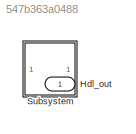
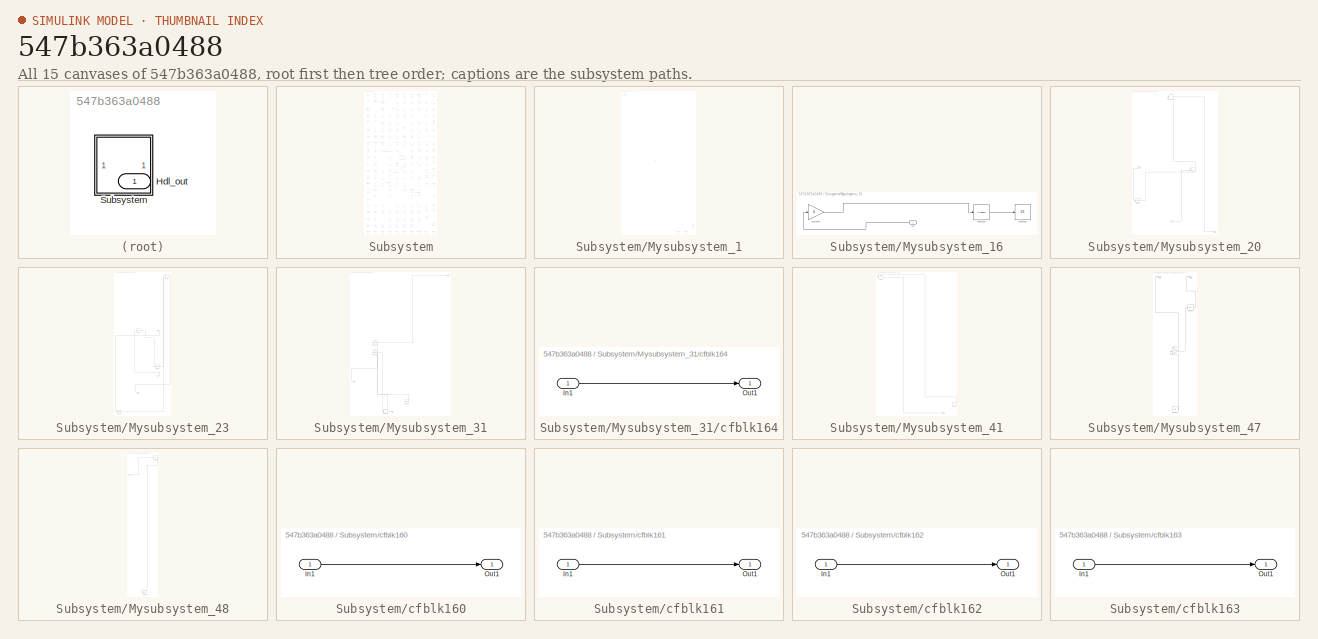
[diagram: thumbnail index - all 15 canvases of the model, root first then tree order]
MODEL slx_547b363a0488
KIND model
CONFIG AbsTol = auto
CONFIG EnableMultiTasking = off
CONFIG FixedStep = auto
CONFIG MaxStep = auto
CONFIG MinStep = auto
CONFIG RelTol = 1e-3
CONFIG SampleTimeConstraint = Unconstrained
CONFIG SolverName = VariableStepAuto
CONFIG StartTime = 0.0
CONFIG StopTime = 10.0
BLOCK [Outport] Hdl_out
  OutDataTypeStr = uint8
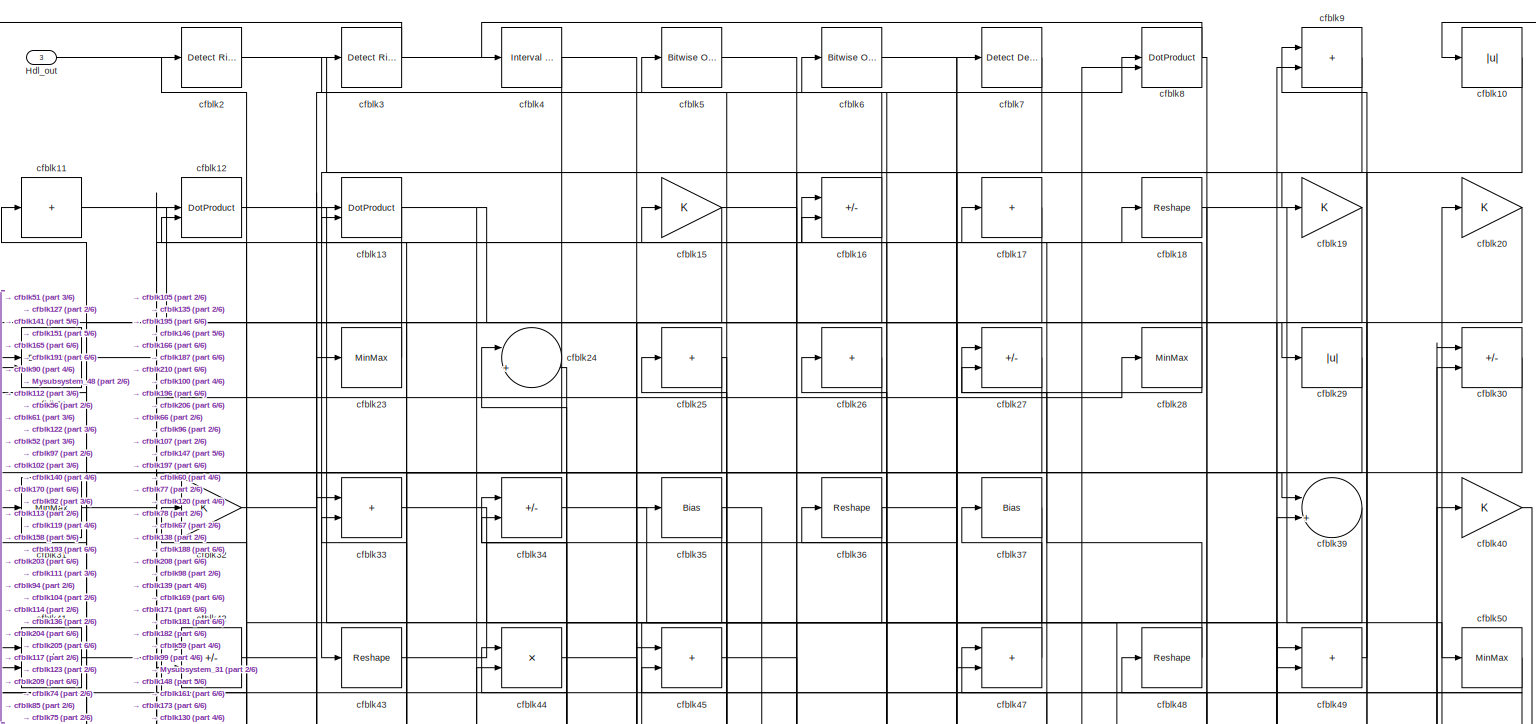
[diagram: Subsystem - part 1/6, full width, top band]
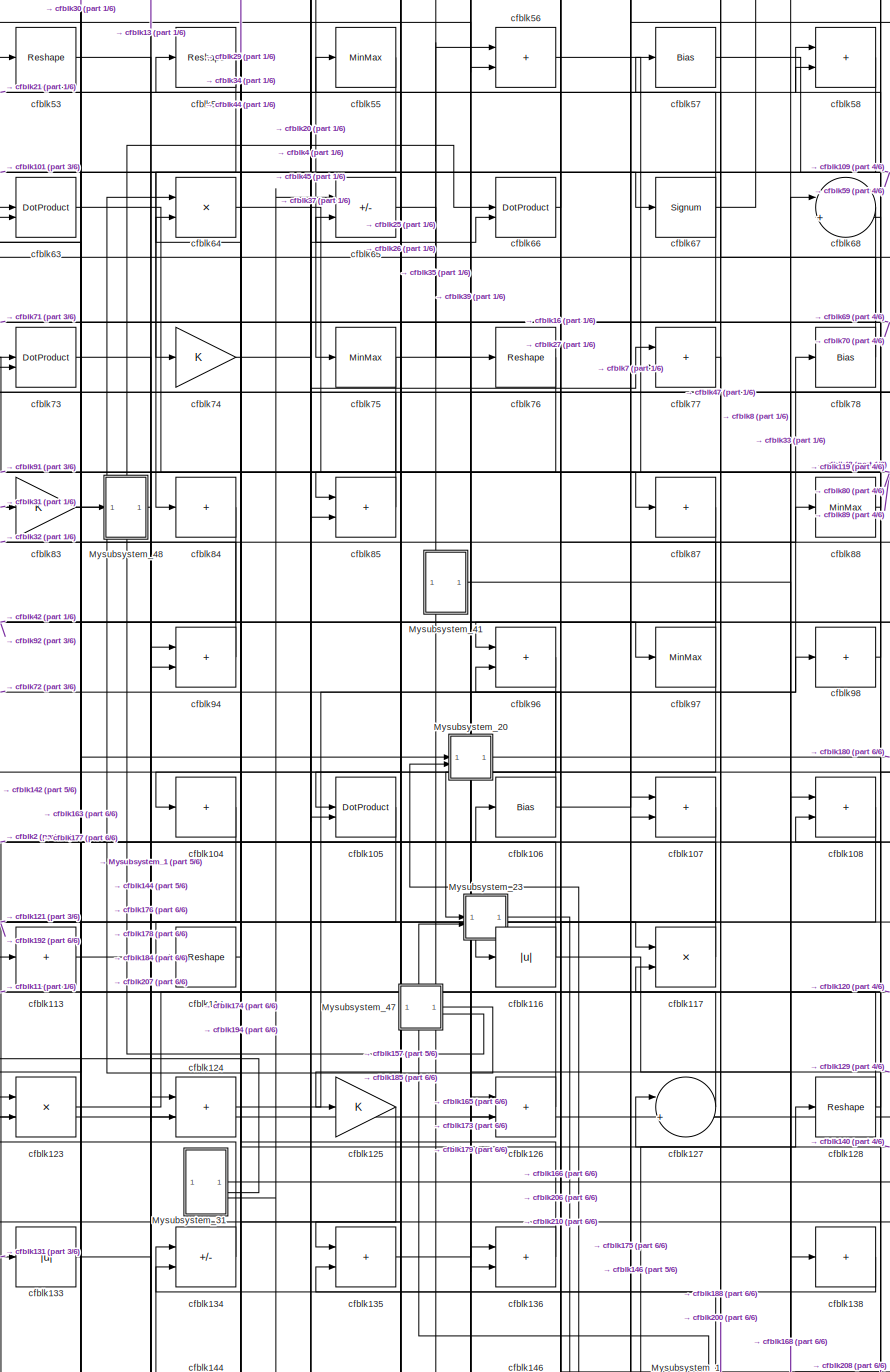
[diagram: Subsystem - part 2/6, central region]
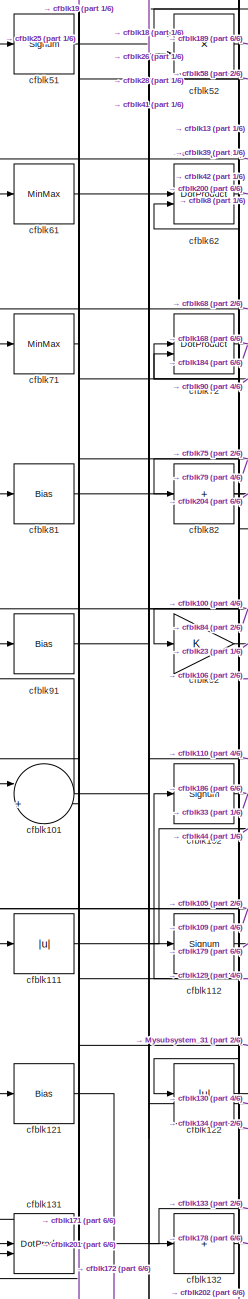
[diagram: Subsystem - part 3/6, middle left region]
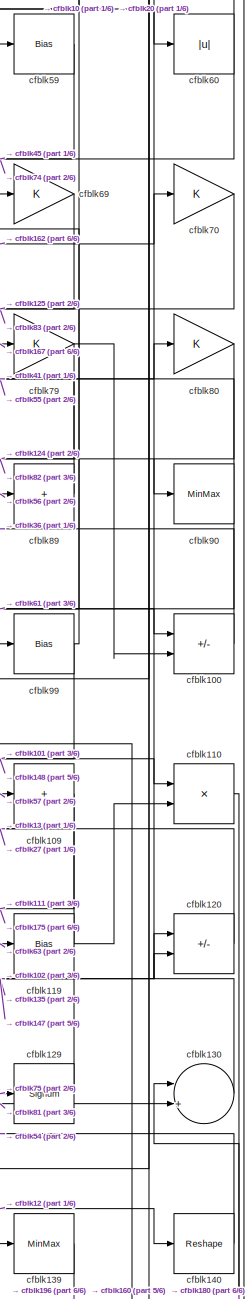
[diagram: Subsystem - part 4/6, middle right region]
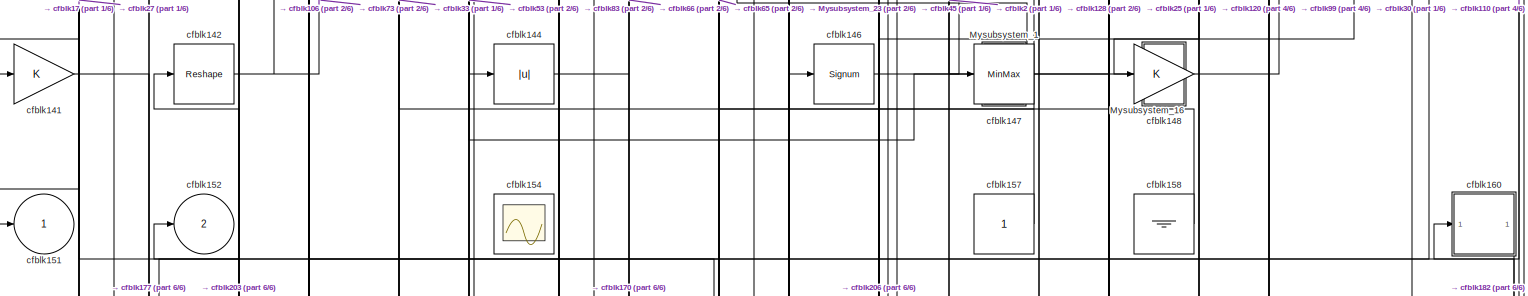
[diagram: Subsystem - part 5/6, full width, bottom band]
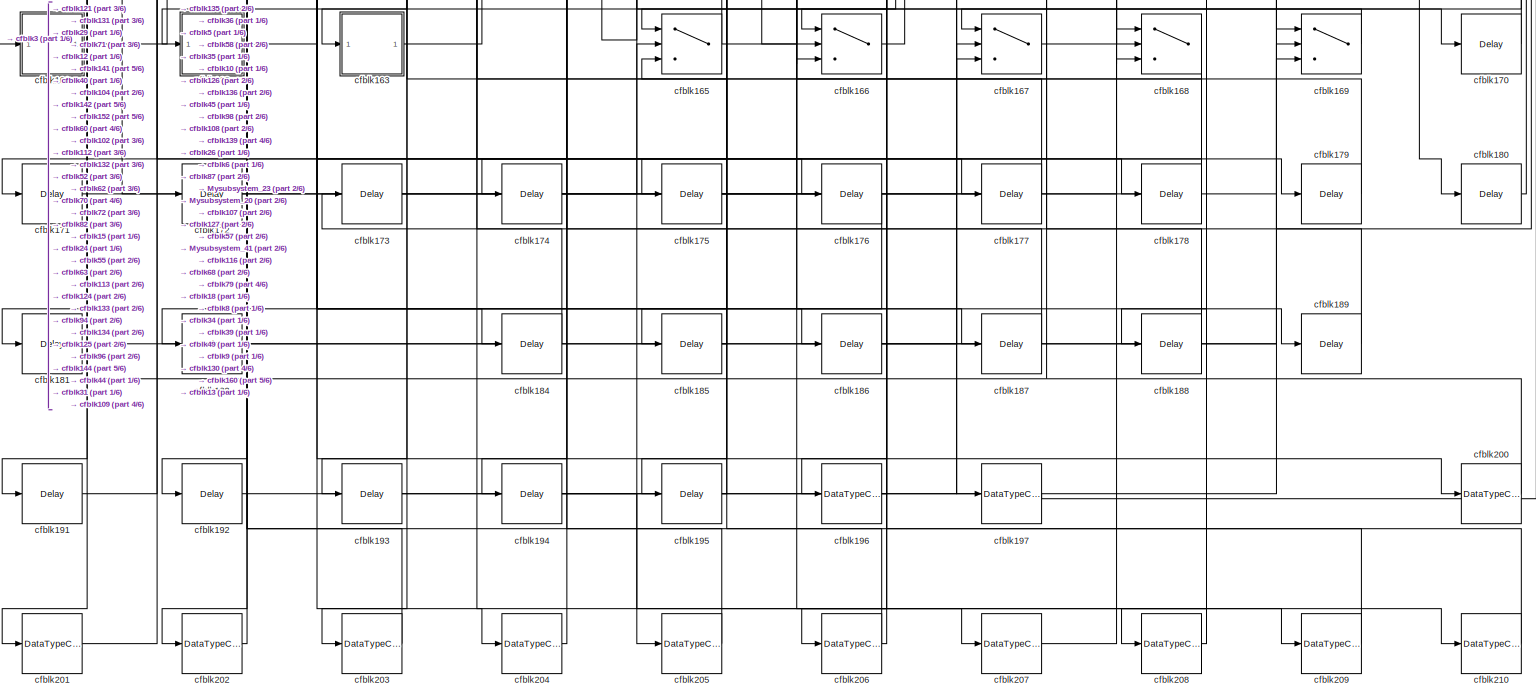
[diagram: Subsystem - part 6/6, full width, bottom band]
BLOCK [SubSystem] Subsystem
BLOCK [Outport] Subsystem/Hdl_out
  OutDataTypeStr = uint8
  Port = 3
BLOCK [SubSystem] Subsystem/Mysubsystem_1
  RTWFcnName = Mysubsystem_1
  RTWFcnNameOpts = User specified
  RTWFileNameOpts = Use function name
  RTWSystemCode = Reusable function
  TreatAsAtomicUnit = on
BLOCK [Inport] Subsystem/Mysubsystem_1/In1
BLOCK [Outport] Subsystem/Mysubsystem_1/Out1
BLOCK [Reference] Subsystem/Mysubsystem_1/cfblk1  REF=hdlsllib/Logic and Bit
Operations/Detect Rise
Positive
  SourceBlock = hdlsllib/Logic and Bit\nOperations/Detect Rise\nPositive
  SourceType = Detect Rise Positive
BLOCK [Delay] Subsystem/Mysubsystem_1/cfblk190
  InputPortMap = u0
  SampleTime = 1
BLOCK [DataTypeConversion] Subsystem/Mysubsystem_1/cfblk198
  OutDataTypeStr = uint8
  RndMeth = Floor
  SaturateOnIntegerOverflow = off
BLOCK [DataTypeConversion] Subsystem/Mysubsystem_1/cfblk199
  OutDataTypeStr = uint8
  RndMeth = Floor
  SaturateOnIntegerOverflow = off
BLOCK [SubSystem] Subsystem/Mysubsystem_16
  RTWFcnName = Mysubsystem_16
  RTWFcnNameOpts = User specified
  RTWFileNameOpts = Use function name
  RTWSystemCode = Reusable function
  TreatAsAtomicUnit = on
BLOCK [Inport] Subsystem/Mysubsystem_16/In1
BLOCK [Gain] Subsystem/Mysubsystem_16/cfblk145
BLOCK [Signum] Subsystem/Mysubsystem_16/cfblk149
BLOCK [Display] Subsystem/Mysubsystem_16/cfblk150
  Decimation = 1
BLOCK [SubSystem] Subsystem/Mysubsystem_20
  RTWFcnName = Mysubsystem_20
  RTWFcnNameOpts = User specified
  RTWFileNameOpts = Use function name
  RTWSystemCode = Reusable function
  TreatAsAtomicUnit = on
BLOCK [Inport] Subsystem/Mysubsystem_20/In1
BLOCK [Inport] Subsystem/Mysubsystem_20/In2
  Port = 2
BLOCK [Outport] Subsystem/Mysubsystem_20/Out1
BLOCK [Product] Subsystem/Mysubsystem_20/cfblk118
  Inputs = */
  RndMeth = Zero
  SaturateOnIntegerOverflow = on
BLOCK [Bias] Subsystem/Mysubsystem_20/cfblk143
  Bias = 0.0
  SaturateOnIntegerOverflow = off
BLOCK [Sum] Subsystem/Mysubsystem_20/cfblk46
  IconShape = rectangular
  Inputs = +
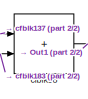
[diagram: Subsystem/Mysubsystem_23 - part 1/2, top right region]
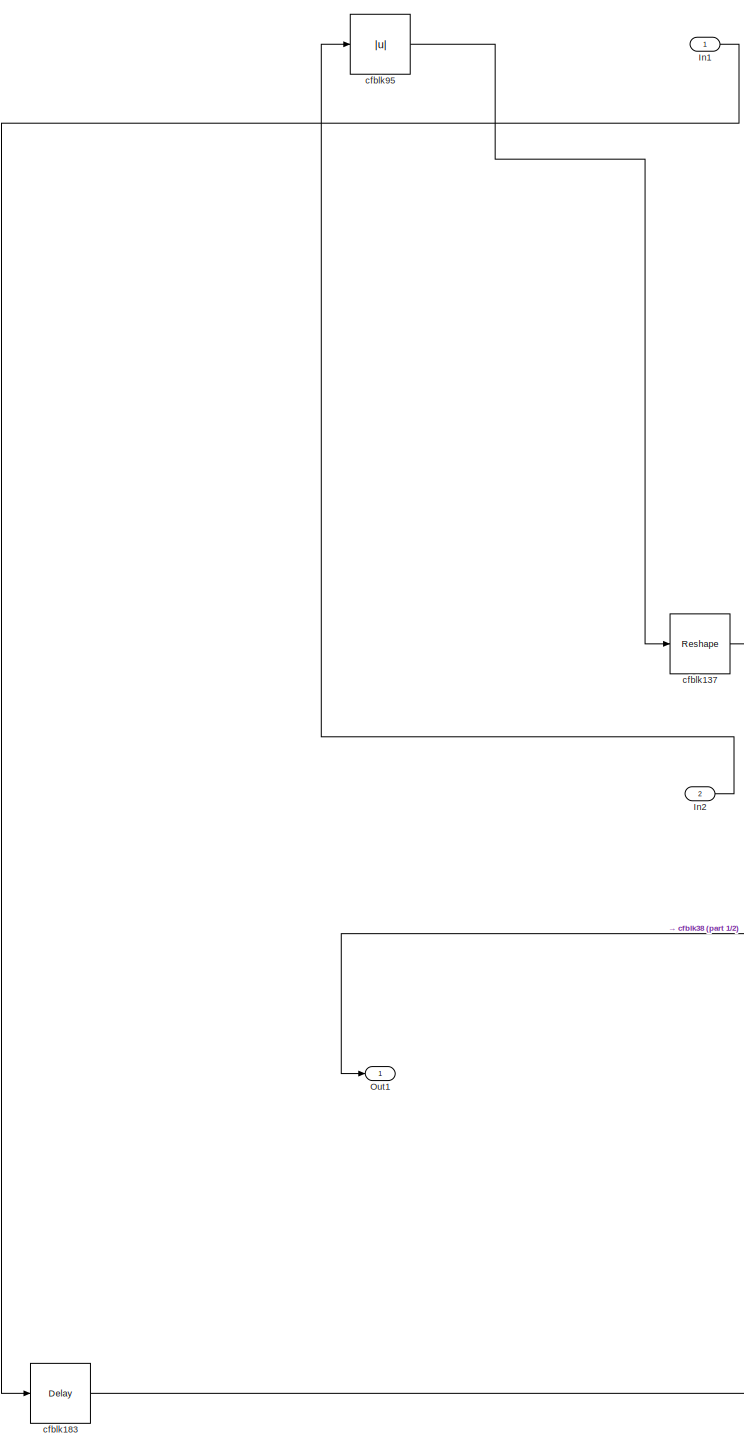
[diagram: Subsystem/Mysubsystem_23 - part 2/2, full width, bottom band]
BLOCK [SubSystem] Subsystem/Mysubsystem_23
  RTWFcnName = Mysubsystem_23
  RTWFcnNameOpts = User specified
  RTWFileNameOpts = Use function name
  RTWSystemCode = Reusable function
  TreatAsAtomicUnit = on
BLOCK [Inport] Subsystem/Mysubsystem_23/In1
BLOCK [Inport] Subsystem/Mysubsystem_23/In2
  Port = 2
BLOCK [Outport] Subsystem/Mysubsystem_23/Out1
BLOCK [Reshape] Subsystem/Mysubsystem_23/cfblk137
BLOCK [Delay] Subsystem/Mysubsystem_23/cfblk183
  InputPortMap = u0
  SampleTime = 1
BLOCK [Sum] Subsystem/Mysubsystem_23/cfblk38
  IconShape = rectangular
BLOCK [Abs] Subsystem/Mysubsystem_23/cfblk95
  SaturateOnIntegerOverflow = off
BLOCK [SubSystem] Subsystem/Mysubsystem_31
  RTWFcnName = Mysubsystem_31
  RTWFcnNameOpts = User specified
  RTWFileNameOpts = Use function name
  RTWSystemCode = Reusable function
  TreatAsAtomicUnit = on
BLOCK [Outport] Subsystem/Mysubsystem_31/Out1
BLOCK [Outport] Subsystem/Mysubsystem_31/Out2
  Port = 2
BLOCK [Outport] Subsystem/Mysubsystem_31/Out3
  Port = 3
BLOCK [Signum] Subsystem/Mysubsystem_31/cfblk103
BLOCK [Reference] Subsystem/Mysubsystem_31/cfblk156  REF=hdlsllib/Sources/Counter
Limited
  SourceBlock = hdlsllib/Sources/Counter\nLimited
  SourceType = Counter Limited
BLOCK [SubSystem] Subsystem/Mysubsystem_31/cfblk164
  LibrarySourceBlock = hdlsllib/Ports &\nSubsystems/Subsystem
BLOCK [Inport] Subsystem/Mysubsystem_31/cfblk164/In1
BLOCK [Outport] Subsystem/Mysubsystem_31/cfblk164/Out1
BLOCK [Reshape] Subsystem/Mysubsystem_31/cfblk93
BLOCK [SubSystem] Subsystem/Mysubsystem_41
  RTWFcnName = Mysubsystem_41
  RTWFcnNameOpts = User specified
  RTWFileNameOpts = Use function name
  RTWSystemCode = Reusable function
  TreatAsAtomicUnit = on
BLOCK [Outport] Subsystem/Mysubsystem_41/Out1
BLOCK [Constant] Subsystem/Mysubsystem_41/cfblk159
  SampleTime = -1
BLOCK [Abs] Subsystem/Mysubsystem_41/cfblk22
  SaturateOnIntegerOverflow = off
BLOCK [SubSystem] Subsystem/Mysubsystem_47
  RTWFcnName = Mysubsystem_47
  RTWFcnNameOpts = User specified
  RTWFileNameOpts = Use function name
  RTWSystemCode = Reusable function
  TreatAsAtomicUnit = on
BLOCK [Outport] Subsystem/Mysubsystem_47/Out1
BLOCK [Outport] Subsystem/Mysubsystem_47/Out2
  Port = 2
BLOCK [Gain] Subsystem/Mysubsystem_47/cfblk115
BLOCK [Ground] Subsystem/Mysubsystem_47/cfblk155
BLOCK [Abs] Subsystem/Mysubsystem_47/cfblk86
  SaturateOnIntegerOverflow = off
BLOCK [SubSystem] Subsystem/Mysubsystem_48
  RTWFcnName = Mysubsystem_48
  RTWFcnNameOpts = User specified
  RTWFileNameOpts = Use function name
  RTWSystemCode = Reusable function
  TreatAsAtomicUnit = on
BLOCK [Inport] Subsystem/Mysubsystem_48/In1
BLOCK [Abs] Subsystem/Mysubsystem_48/cfblk14
  SaturateOnIntegerOverflow = off
BLOCK [Display] Subsystem/Mysubsystem_48/cfblk153
  Decimation = 1
BLOCK [Abs] Subsystem/cfblk10
  OutDataTypeStr = uint8
  SaturateOnIntegerOverflow = off
BLOCK [Sum] Subsystem/cfblk100
  IconShape = rectangular
  Inputs = +-
  OutDataTypeStr = uint8
BLOCK [Sum] Subsystem/cfblk101
  Inputs = |++
  OutDataTypeStr = uint8
BLOCK [Signum] Subsystem/cfblk102
BLOCK [Sum] Subsystem/cfblk104
  IconShape = rectangular
  Inputs = +
  OutDataTypeStr = uint8
BLOCK [DotProduct] Subsystem/cfblk105
  OutDataTypeStr = uint8
BLOCK [Bias] Subsystem/cfblk106
  Bias = 0.0
  SaturateOnIntegerOverflow = off
BLOCK [Sum] Subsystem/cfblk107
  IconShape = rectangular
  OutDataTypeStr = uint8
BLOCK [Sum] Subsystem/cfblk108
  IconShape = rectangular
  OutDataTypeStr = uint8
BLOCK [Sum] Subsystem/cfblk109
  IconShape = rectangular
  Inputs = +
  OutDataTypeStr = uint8
BLOCK [Sum] Subsystem/cfblk11
  IconShape = rectangular
  Inputs = +
  OutDataTypeStr = uint8
BLOCK [Product] Subsystem/cfblk110
  Inputs = */
  OutDataTypeStr = uint8
  RndMeth = Zero
  SaturateOnIntegerOverflow = on
BLOCK [Abs] Subsystem/cfblk111
  OutDataTypeStr = uint8
  SaturateOnIntegerOverflow = off
BLOCK [Signum] Subsystem/cfblk112
BLOCK [Sum] Subsystem/cfblk113
  IconShape = rectangular
  Inputs = +
  OutDataTypeStr = uint8
BLOCK [Reshape] Subsystem/cfblk114
BLOCK [Abs] Subsystem/cfblk116
  OutDataTypeStr = uint8
  SaturateOnIntegerOverflow = off
BLOCK [Product] Subsystem/cfblk117
  Inputs = */
  OutDataTypeStr = uint8
  RndMeth = Zero
  SaturateOnIntegerOverflow = on
BLOCK [Bias] Subsystem/cfblk119
  Bias = 0.0
  SaturateOnIntegerOverflow = off
BLOCK [DotProduct] Subsystem/cfblk12
  OutDataTypeStr = uint8
BLOCK [Sum] Subsystem/cfblk120
  IconShape = rectangular
  Inputs = +-
  OutDataTypeStr = uint8
BLOCK [Bias] Subsystem/cfblk121
  Bias = 0.0
  SaturateOnIntegerOverflow = off
BLOCK [Abs] Subsystem/cfblk122
  OutDataTypeStr = uint8
  SaturateOnIntegerOverflow = off
BLOCK [Product] Subsystem/cfblk123
  Inputs = */
  OutDataTypeStr = uint8
  RndMeth = Zero
  SaturateOnIntegerOverflow = on
BLOCK [Sum] Subsystem/cfblk124
  IconShape = rectangular
  OutDataTypeStr = uint8
BLOCK [Gain] Subsystem/cfblk125
  OutDataTypeStr = uint8
BLOCK [Sum] Subsystem/cfblk126
  IconShape = rectangular
  OutDataTypeStr = uint8
BLOCK [Sum] Subsystem/cfblk127
  Inputs = |++
  OutDataTypeStr = uint8
BLOCK [Reshape] Subsystem/cfblk128
BLOCK [Signum] Subsystem/cfblk129
BLOCK [DotProduct] Subsystem/cfblk13
  OutDataTypeStr = uint8
BLOCK [Sum] Subsystem/cfblk130
  Inputs = |++
  OutDataTypeStr = uint8
BLOCK [DotProduct] Subsystem/cfblk131
  OutDataTypeStr = uint8
BLOCK [Sum] Subsystem/cfblk132
  IconShape = rectangular
  Inputs = +
  OutDataTypeStr = uint8
BLOCK [Abs] Subsystem/cfblk133
  OutDataTypeStr = uint8
  SaturateOnIntegerOverflow = off
BLOCK [Sum] Subsystem/cfblk134
  IconShape = rectangular
  Inputs = +-
  OutDataTypeStr = uint8
BLOCK [Sum] Subsystem/cfblk135
  IconShape = rectangular
  OutDataTypeStr = uint8
BLOCK [Sum] Subsystem/cfblk136
  IconShape = rectangular
  OutDataTypeStr = uint8
BLOCK [Sum] Subsystem/cfblk138
  IconShape = rectangular
  Inputs = +
  OutDataTypeStr = uint8
BLOCK [MinMax] Subsystem/cfblk139
  OutDataTypeStr = uint8
BLOCK [Reshape] Subsystem/cfblk140
BLOCK [Gain] Subsystem/cfblk141
  OutDataTypeStr = uint8
BLOCK [Reshape] Subsystem/cfblk142
BLOCK [Abs] Subsystem/cfblk144
  OutDataTypeStr = uint8
  SaturateOnIntegerOverflow = off
BLOCK [Signum] Subsystem/cfblk146
BLOCK [MinMax] Subsystem/cfblk147
  OutDataTypeStr = uint8
BLOCK [Gain] Subsystem/cfblk148
  OutDataTypeStr = uint8
BLOCK [Gain] Subsystem/cfblk15
  OutDataTypeStr = uint8
BLOCK [Outport] Subsystem/cfblk151
  OutDataTypeStr = uint8
  VectorParamsAs1DForOutWhenUnconnected = off
BLOCK [Outport] Subsystem/cfblk152
  OutDataTypeStr = uint8
  Port = 2
  VectorParamsAs1DForOutWhenUnconnected = off
BLOCK [Scope] Subsystem/cfblk154
  Floating = on
  NumInputPorts = 1
  ScopeSpecificationString = Simulink.scopes.TimeScopeBlockCfg('CurrentConfiguration', extmgr.ConfigurationSet(extmgr.Configuration('Core','General UI',true,'FigureColor',[0.156862745098039 0.156862745098039 0.156862745098039]),extmgr.Configuration('Core','Source UI',true),extmgr.Configuration('Sources','WiredSimulink',true,'DataLoggingSaveFormat','StructureWithTime','DataLoggingLimitDataPoints',true,'DataLoggingDecimation','...<+2674ch>
BLOCK [Constant] Subsystem/cfblk157
  OutDataTypeStr = uint8
  SampleTime = -1
BLOCK [Ground] Subsystem/cfblk158
BLOCK [Sum] Subsystem/cfblk16
  IconShape = rectangular
  Inputs = +-
  OutDataTypeStr = uint8
BLOCK [SubSystem] Subsystem/cfblk160
  LibrarySourceBlock = hdlsllib/Ports &\nSubsystems/Subsystem
BLOCK [Inport] Subsystem/cfblk160/In1
BLOCK [Outport] Subsystem/cfblk160/Out1
BLOCK [SubSystem] Subsystem/cfblk161
  LibrarySourceBlock = hdlsllib/Ports &\nSubsystems/Subsystem
BLOCK [Inport] Subsystem/cfblk161/In1
BLOCK [Outport] Subsystem/cfblk161/Out1
BLOCK [SubSystem] Subsystem/cfblk162
  LibrarySourceBlock = hdlsllib/Ports &\nSubsystems/Subsystem
BLOCK [Inport] Subsystem/cfblk162/In1
BLOCK [Outport] Subsystem/cfblk162/Out1
BLOCK [SubSystem] Subsystem/cfblk163
  LibrarySourceBlock = hdlsllib/Ports &\nSubsystems/Subsystem
BLOCK [Inport] Subsystem/cfblk163/In1
BLOCK [Outport] Subsystem/cfblk163/Out1
BLOCK [Switch] Subsystem/cfblk165
  InputSameDT = off
  OutDataTypeStr = uint8
  SaturateOnIntegerOverflow = off
BLOCK [Switch] Subsystem/cfblk166
  InputSameDT = off
  OutDataTypeStr = uint8
  SaturateOnIntegerOverflow = off
BLOCK [Switch] Subsystem/cfblk167
  InputSameDT = off
  OutDataTypeStr = uint8
  SaturateOnIntegerOverflow = off
BLOCK [Switch] Subsystem/cfblk168
  InputSameDT = off
  OutDataTypeStr = uint8
  SaturateOnIntegerOverflow = off
BLOCK [Switch] Subsystem/cfblk169
  InputSameDT = off
  OutDataTypeStr = uint8
  SaturateOnIntegerOverflow = off
BLOCK [Sum] Subsystem/cfblk17
  IconShape = rectangular
  Inputs = +
  OutDataTypeStr = uint8
BLOCK [Delay] Subsystem/cfblk170
  InputPortMap = u0
  SampleTime = 1
BLOCK [Delay] Subsystem/cfblk171
  InputPortMap = u0
  SampleTime = 1
BLOCK [Delay] Subsystem/cfblk172
  InputPortMap = u0
  SampleTime = 1
BLOCK [Delay] Subsystem/cfblk173
  InputPortMap = u0
  SampleTime = 1
BLOCK [Delay] Subsystem/cfblk174
  InputPortMap = u0
  SampleTime = 1
BLOCK [Delay] Subsystem/cfblk175
  InputPortMap = u0
  SampleTime = 1
BLOCK [Delay] Subsystem/cfblk176
  InputPortMap = u0
  SampleTime = 1
BLOCK [Delay] Subsystem/cfblk177
  InputPortMap = u0
  SampleTime = 1
BLOCK [Delay] Subsystem/cfblk178
  InputPortMap = u0
  SampleTime = 1
BLOCK [Delay] Subsystem/cfblk179
  InputPortMap = u0
  SampleTime = 1
BLOCK [Reshape] Subsystem/cfblk18
BLOCK [Delay] Subsystem/cfblk180
  InputPortMap = u0
  SampleTime = 1
BLOCK [Delay] Subsystem/cfblk181
  InputPortMap = u0
  SampleTime = 1
BLOCK [Delay] Subsystem/cfblk182
  InputPortMap = u0
  SampleTime = 1
BLOCK [Delay] Subsystem/cfblk184
  InputPortMap = u0
  SampleTime = 1
BLOCK [Delay] Subsystem/cfblk185
  InputPortMap = u0
  SampleTime = 1
BLOCK [Delay] Subsystem/cfblk186
  InputPortMap = u0
  SampleTime = 1
BLOCK [Delay] Subsystem/cfblk187
  InputPortMap = u0
  SampleTime = 1
BLOCK [Delay] Subsystem/cfblk188
  InputPortMap = u0
  SampleTime = 1
BLOCK [Delay] Subsystem/cfblk189
  InputPortMap = u0
  SampleTime = 1
BLOCK [Gain] Subsystem/cfblk19
  OutDataTypeStr = uint8
BLOCK [Delay] Subsystem/cfblk191
  InputPortMap = u0
  SampleTime = 1
BLOCK [Delay] Subsystem/cfblk192
  InputPortMap = u0
  SampleTime = 1
BLOCK [Delay] Subsystem/cfblk193
  InputPortMap = u0
  SampleTime = 1
BLOCK [Delay] Subsystem/cfblk194
  InputPortMap = u0
  SampleTime = 1
BLOCK [Delay] Subsystem/cfblk195
  InputPortMap = u0
  SampleTime = 1
BLOCK [DataTypeConversion] Subsystem/cfblk196
  OutDataTypeStr = uint8
  RndMeth = Floor
  SaturateOnIntegerOverflow = off
BLOCK [DataTypeConversion] Subsystem/cfblk197
  OutDataTypeStr = uint8
  RndMeth = Floor
  SaturateOnIntegerOverflow = off
BLOCK [Reference] Subsystem/cfblk2  REF=hdlsllib/Logic and Bit
Operations/Detect Rise
Nonnegative
  SourceBlock = hdlsllib/Logic and Bit\nOperations/Detect Rise\nNonnegative
  SourceType = Detect Rise Nonnegative
BLOCK [Gain] Subsystem/cfblk20
  OutDataTypeStr = uint8
BLOCK [DataTypeConversion] Subsystem/cfblk200
  OutDataTypeStr = uint8
  RndMeth = Floor
  SaturateOnIntegerOverflow = off
BLOCK [DataTypeConversion] Subsystem/cfblk201
  OutDataTypeStr = uint8
  RndMeth = Floor
  SaturateOnIntegerOverflow = off
BLOCK [DataTypeConversion] Subsystem/cfblk202
  OutDataTypeStr = uint8
  RndMeth = Floor
  SaturateOnIntegerOverflow = off
BLOCK [DataTypeConversion] Subsystem/cfblk203
  OutDataTypeStr = uint8
  RndMeth = Floor
  SaturateOnIntegerOverflow = off
BLOCK [DataTypeConversion] Subsystem/cfblk204
  OutDataTypeStr = uint8
  RndMeth = Floor
  SaturateOnIntegerOverflow = off
BLOCK [DataTypeConversion] Subsystem/cfblk205
  OutDataTypeStr = uint8
  RndMeth = Floor
  SaturateOnIntegerOverflow = off
BLOCK [DataTypeConversion] Subsystem/cfblk206
  OutDataTypeStr = uint8
  RndMeth = Floor
  SaturateOnIntegerOverflow = off
BLOCK [DataTypeConversion] Subsystem/cfblk207
  OutDataTypeStr = uint8
  RndMeth = Floor
  SaturateOnIntegerOverflow = off
BLOCK [DataTypeConversion] Subsystem/cfblk208
  OutDataTypeStr = uint8
  RndMeth = Floor
  SaturateOnIntegerOverflow = off
BLOCK [DataTypeConversion] Subsystem/cfblk209
  OutDataTypeStr = uint8
  RndMeth = Floor
  SaturateOnIntegerOverflow = off
BLOCK [DotProduct] Subsystem/cfblk21
  OutDataTypeStr = uint8
BLOCK [DataTypeConversion] Subsystem/cfblk210
  OutDataTypeStr = uint8
  RndMeth = Floor
  SaturateOnIntegerOverflow = off
BLOCK [MinMax] Subsystem/cfblk23
  OutDataTypeStr = uint8
BLOCK [Sum] Subsystem/cfblk24
  Inputs = |++
  OutDataTypeStr = uint8
BLOCK [Sum] Subsystem/cfblk25
  IconShape = rectangular
  Inputs = +
  OutDataTypeStr = uint8
BLOCK [Sum] Subsystem/cfblk26
  IconShape = rectangular
  Inputs = +
  OutDataTypeStr = uint8
BLOCK [Sum] Subsystem/cfblk27
  IconShape = rectangular
  Inputs = +-
  OutDataTypeStr = uint8
BLOCK [MinMax] Subsystem/cfblk28
  OutDataTypeStr = uint8
BLOCK [Abs] Subsystem/cfblk29
  OutDataTypeStr = uint8
  SaturateOnIntegerOverflow = off
BLOCK [Reference] Subsystem/cfblk3  REF=hdlsllib/Logic and Bit
Operations/Detect Rise
Positive
  SourceBlock = hdlsllib/Logic and Bit\nOperations/Detect Rise\nPositive
  SourceType = Detect Rise Positive
BLOCK [Sum] Subsystem/cfblk30
  IconShape = rectangular
  Inputs = +-
  OutDataTypeStr = uint8
BLOCK [MinMax] Subsystem/cfblk31
  OutDataTypeStr = uint8
BLOCK [Gain] Subsystem/cfblk32
  OutDataTypeStr = uint8
BLOCK [Sum] Subsystem/cfblk33
  IconShape = rectangular
  OutDataTypeStr = uint8
BLOCK [Sum] Subsystem/cfblk34
  IconShape = rectangular
  Inputs = +-
  OutDataTypeStr = uint8
BLOCK [Bias] Subsystem/cfblk35
  Bias = 0.0
  SaturateOnIntegerOverflow = off
BLOCK [Reshape] Subsystem/cfblk36
BLOCK [Bias] Subsystem/cfblk37
  Bias = 0.0
  SaturateOnIntegerOverflow = off
BLOCK [Sum] Subsystem/cfblk39
  Inputs = |++
  OutDataTypeStr = uint8
BLOCK [Reference] Subsystem/cfblk4  REF=hdlsllib/Logic and Bit
Operations/Interval Test
  SourceBlock = hdlsllib/Logic and Bit\nOperations/Interval Test
  SourceType = Interval Test
BLOCK [Gain] Subsystem/cfblk40
  OutDataTypeStr = uint8
BLOCK [Sum] Subsystem/cfblk41
  IconShape = rectangular
  Inputs = +-
  OutDataTypeStr = uint8
BLOCK [Sum] Subsystem/cfblk42
  IconShape = rectangular
  Inputs = +-
  OutDataTypeStr = uint8
BLOCK [Reshape] Subsystem/cfblk43
BLOCK [Product] Subsystem/cfblk44
  Inputs = */
  OutDataTypeStr = uint8
  RndMeth = Zero
  SaturateOnIntegerOverflow = on
BLOCK [Sum] Subsystem/cfblk45
  IconShape = rectangular
  OutDataTypeStr = uint8
BLOCK [Sum] Subsystem/cfblk47
  IconShape = rectangular
  OutDataTypeStr = uint8
BLOCK [Reshape] Subsystem/cfblk48
BLOCK [Sum] Subsystem/cfblk49
  IconShape = rectangular
  OutDataTypeStr = uint8
BLOCK [Reference] Subsystem/cfblk5  REF=simulink/Logic and Bit
Operations/Bitwise
Operator
  LibrarySourceBlock = hdlsllib/Logic and Bit\nOperations/Bitwise\nOperator
  SourceBlock = simulink/Logic and Bit\nOperations/Bitwise\nOperator
  SourceType = Bitwise Operator
BLOCK [MinMax] Subsystem/cfblk50
  OutDataTypeStr = uint8
BLOCK [Signum] Subsystem/cfblk51
BLOCK [Product] Subsystem/cfblk52
  Inputs = */
  OutDataTypeStr = uint8
  RndMeth = Zero
  SaturateOnIntegerOverflow = on
BLOCK [Reshape] Subsystem/cfblk53
BLOCK [Reshape] Subsystem/cfblk54
BLOCK [MinMax] Subsystem/cfblk55
  OutDataTypeStr = uint8
BLOCK [Sum] Subsystem/cfblk56
  IconShape = rectangular
  OutDataTypeStr = uint8
BLOCK [Bias] Subsystem/cfblk57
  Bias = 0.0
  SaturateOnIntegerOverflow = off
BLOCK [Sum] Subsystem/cfblk58
  IconShape = rectangular
  OutDataTypeStr = uint8
BLOCK [Bias] Subsystem/cfblk59
  Bias = 0.0
  SaturateOnIntegerOverflow = off
BLOCK [Reference] Subsystem/cfblk6  REF=simulink/Logic and Bit
Operations/Bitwise
Operator
  LibrarySourceBlock = hdlsllib/Logic and Bit\nOperations/Bitwise\nOperator
  SourceBlock = simulink/Logic and Bit\nOperations/Bitwise\nOperator
  SourceType = Bitwise Operator
BLOCK [Abs] Subsystem/cfblk60
  OutDataTypeStr = uint8
  SaturateOnIntegerOverflow = off
BLOCK [MinMax] Subsystem/cfblk61
  OutDataTypeStr = uint8
BLOCK [DotProduct] Subsystem/cfblk62
  OutDataTypeStr = uint8
BLOCK [DotProduct] Subsystem/cfblk63
  OutDataTypeStr = uint8
BLOCK [Product] Subsystem/cfblk64
  Inputs = */
  OutDataTypeStr = uint8
  RndMeth = Zero
  SaturateOnIntegerOverflow = on
BLOCK [Sum] Subsystem/cfblk65
  IconShape = rectangular
  Inputs = +-
  OutDataTypeStr = uint8
BLOCK [DotProduct] Subsystem/cfblk66
  OutDataTypeStr = uint8
BLOCK [Signum] Subsystem/cfblk67
BLOCK [Sum] Subsystem/cfblk68
  Inputs = |++
  OutDataTypeStr = uint8
BLOCK [Gain] Subsystem/cfblk69
  OutDataTypeStr = uint8
BLOCK [Reference] Subsystem/cfblk7  REF=simulink/Logic and Bit
Operations/Detect
Decrease
  LibrarySourceBlock = hdlsllib/Logic and Bit\nOperations/Detect\nDecrease
  SourceBlock = simulink/Logic and Bit\nOperations/Detect\nDecrease
  SourceType = Detect Decrease
BLOCK [Gain] Subsystem/cfblk70
  OutDataTypeStr = uint8
BLOCK [MinMax] Subsystem/cfblk71
  OutDataTypeStr = uint8
BLOCK [DotProduct] Subsystem/cfblk72
  OutDataTypeStr = uint8
BLOCK [DotProduct] Subsystem/cfblk73
  OutDataTypeStr = uint8
BLOCK [Gain] Subsystem/cfblk74
  OutDataTypeStr = uint8
BLOCK [MinMax] Subsystem/cfblk75
  OutDataTypeStr = uint8
BLOCK [Reshape] Subsystem/cfblk76
BLOCK [Sum] Subsystem/cfblk77
  IconShape = rectangular
  OutDataTypeStr = uint8
BLOCK [Bias] Subsystem/cfblk78
  Bias = 0.0
  SaturateOnIntegerOverflow = off
BLOCK [Gain] Subsystem/cfblk79
  OutDataTypeStr = uint8
BLOCK [DotProduct] Subsystem/cfblk8
  OutDataTypeStr = uint8
BLOCK [Gain] Subsystem/cfblk80
  OutDataTypeStr = uint8
BLOCK [Bias] Subsystem/cfblk81
  Bias = 0.0
  SaturateOnIntegerOverflow = off
BLOCK [Sum] Subsystem/cfblk82
  IconShape = rectangular
  Inputs = +
  OutDataTypeStr = uint8
BLOCK [Gain] Subsystem/cfblk83
  OutDataTypeStr = uint8
BLOCK [Sum] Subsystem/cfblk84
  IconShape = rectangular
  Inputs = +
  OutDataTypeStr = uint8
BLOCK [Sum] Subsystem/cfblk85
  IconShape = rectangular
  OutDataTypeStr = uint8
BLOCK [Sum] Subsystem/cfblk87
  IconShape = rectangular
  Inputs = +
  OutDataTypeStr = uint8
BLOCK [MinMax] Subsystem/cfblk88
  OutDataTypeStr = uint8
BLOCK [Sum] Subsystem/cfblk89
  IconShape = rectangular
  Inputs = +
  OutDataTypeStr = uint8
BLOCK [Sum] Subsystem/cfblk9
  IconShape = rectangular
  OutDataTypeStr = uint8
BLOCK [MinMax] Subsystem/cfblk90
  OutDataTypeStr = uint8
BLOCK [Bias] Subsystem/cfblk91
  Bias = 0.0
  SaturateOnIntegerOverflow = off
BLOCK [Gain] Subsystem/cfblk92
  OutDataTypeStr = uint8
BLOCK [Sum] Subsystem/cfblk94
  IconShape = rectangular
  OutDataTypeStr = uint8
BLOCK [Sum] Subsystem/cfblk96
  IconShape = rectangular
  OutDataTypeStr = uint8
BLOCK [MinMax] Subsystem/cfblk97
  OutDataTypeStr = uint8
BLOCK [Sum] Subsystem/cfblk98
  IconShape = rectangular
  Inputs = +
  OutDataTypeStr = uint8
BLOCK [Bias] Subsystem/cfblk99
  Bias = 0.0
  SaturateOnIntegerOverflow = off
LINE Subsystem/Mysubsystem_1/In1:1 -> Subsystem/Mysubsystem_1/cfblk190:1
LINE Subsystem/Mysubsystem_1/cfblk190:1 -> Subsystem/Mysubsystem_1/cfblk199:1
LINE Subsystem/Mysubsystem_1/cfblk198:1 -> Subsystem/Mysubsystem_1/Out1:1
LINE Subsystem/Mysubsystem_1/cfblk199:1 -> Subsystem/Mysubsystem_1/cfblk1:1
LINE Subsystem/Mysubsystem_1/cfblk1:1 -> Subsystem/Mysubsystem_1/cfblk198:1
LINE Subsystem/Mysubsystem_16/In1:1 -> Subsystem/Mysubsystem_16/cfblk145:1
LINE Subsystem/Mysubsystem_16/cfblk145:1 -> Subsystem/Mysubsystem_16/cfblk149:1
LINE Subsystem/Mysubsystem_16/cfblk149:1 -> Subsystem/Mysubsystem_16/cfblk150:1
LINE Subsystem/Mysubsystem_1:1 -> Subsystem/Mysubsystem_23:2
LINE Subsystem/Mysubsystem_20/In1:1 -> Subsystem/Mysubsystem_20/cfblk143:1
LINE Subsystem/Mysubsystem_20/In2:1 -> Subsystem/Mysubsystem_20/cfblk118:2
LINE Subsystem/Mysubsystem_20/cfblk118:1 -> Subsystem/Mysubsystem_20/cfblk46:1
LINE Subsystem/Mysubsystem_20/cfblk143:1 -> Subsystem/Mysubsystem_20/cfblk118:1
LINE Subsystem/Mysubsystem_20/cfblk46:1 -> Subsystem/Mysubsystem_20/Out1:1
LINE Subsystem/Mysubsystem_20:1 -> Subsystem/cfblk180:1
LINE Subsystem/Mysubsystem_23/In1:1 -> Subsystem/Mysubsystem_23/cfblk183:1
LINE Subsystem/Mysubsystem_23/In2:1 -> Subsystem/Mysubsystem_23/cfblk95:1
LINE Subsystem/Mysubsystem_23/cfblk137:1 -> Subsystem/Mysubsystem_23/cfblk38:1
LINE Subsystem/Mysubsystem_23/cfblk183:1 -> Subsystem/Mysubsystem_23/cfblk38:2
LINE Subsystem/Mysubsystem_23/cfblk38:1 -> Subsystem/Mysubsystem_23/Out1:1
LINE Subsystem/Mysubsystem_23/cfblk95:1 -> Subsystem/Mysubsystem_23/cfblk137:1
LINE Subsystem/Mysubsystem_23:1 -> Subsystem/cfblk165:1
NET Subsystem/Mysubsystem_31/cfblk103:1 -> Subsystem/Mysubsystem_31/Out2:1, Subsystem/Mysubsystem_31/cfblk164:1
LINE Subsystem/Mysubsystem_31/cfblk156:1 -> Subsystem/Mysubsystem_31/cfblk103:1
LINE Subsystem/Mysubsystem_31/cfblk164/In1:1 -> Subsystem/Mysubsystem_31/cfblk164/Out1:1
NET Subsystem/Mysubsystem_31/cfblk164:1 -> Subsystem/Mysubsystem_31/Out3:1, Subsystem/Mysubsystem_31/cfblk93:1
LINE Subsystem/Mysubsystem_31/cfblk93:1 -> Subsystem/Mysubsystem_31/Out1:1
LINE Subsystem/Mysubsystem_31:1 -> Subsystem/cfblk30:2
LINE Subsystem/Mysubsystem_31:2 -> Subsystem/cfblk131:1
NET Subsystem/Mysubsystem_31:3 -> Subsystem/cfblk65:1, Subsystem/cfblk77:1
LINE Subsystem/Mysubsystem_41/cfblk159:1 -> Subsystem/Mysubsystem_41/cfblk22:1
LINE Subsystem/Mysubsystem_41/cfblk22:1 -> Subsystem/Mysubsystem_41/Out1:1
LINE Subsystem/Mysubsystem_41:1 -> Subsystem/cfblk168:1
NET Subsystem/Mysubsystem_47/cfblk115:1 -> Subsystem/Mysubsystem_47/Out1:1, Subsystem/Mysubsystem_47/cfblk86:1
LINE Subsystem/Mysubsystem_47/cfblk155:1 -> Subsystem/Mysubsystem_47/cfblk115:1
LINE Subsystem/Mysubsystem_47/cfblk86:1 -> Subsystem/Mysubsystem_47/Out2:1
LINE Subsystem/Mysubsystem_47:1 -> Subsystem/cfblk64:1
LINE Subsystem/Mysubsystem_47:2 -> Subsystem/cfblk66:1
LINE Subsystem/Mysubsystem_48/In1:1 -> Subsystem/Mysubsystem_48/cfblk14:1
LINE Subsystem/Mysubsystem_48/cfblk14:1 -> Subsystem/Mysubsystem_48/cfblk153:1
LINE Subsystem/cfblk100:1 -> Subsystem/cfblk36:1
NET Subsystem/cfblk101:1 -> Subsystem/cfblk110:1, Subsystem/cfblk81:1
NET Subsystem/cfblk102:1 -> Subsystem/cfblk186:1, Subsystem/cfblk33:1
NET Subsystem/cfblk104:1 -> Subsystem/Mysubsystem_20:1, Subsystem/cfblk192:1
LINE Subsystem/cfblk105:1 -> Subsystem/cfblk121:1
NET Subsystem/cfblk106:1 -> Subsystem/cfblk72:1, Subsystem/cfblk88:1
LINE Subsystem/cfblk107:1 -> Subsystem/cfblk126:2
LINE Subsystem/cfblk108:1 -> Subsystem/cfblk206:1
NET Subsystem/cfblk109:1 -> Subsystem/cfblk111:1, Subsystem/cfblk175:1
NET Subsystem/cfblk10:1 -> Subsystem/cfblk166:3, Subsystem/cfblk19:1, Subsystem/cfblk99:1
LINE Subsystem/cfblk110:1 -> Subsystem/cfblk160:1
LINE Subsystem/cfblk111:1 -> Subsystem/cfblk44:2
LINE Subsystem/cfblk112:1 -> Subsystem/cfblk179:1
LINE Subsystem/cfblk113:1 -> Subsystem/cfblk207:1
LINE Subsystem/cfblk114:1 -> Subsystem/cfblk44:1
NET Subsystem/cfblk116:1 -> Subsystem/cfblk168:2, Subsystem/cfblk64:2
LINE Subsystem/cfblk117:1 -> Subsystem/cfblk2:1
NET Subsystem/cfblk119:1 -> Subsystem/cfblk110:2, Subsystem/cfblk13:2
LINE Subsystem/cfblk11:1 -> Subsystem/cfblk107:1
LINE Subsystem/cfblk120:1 -> Subsystem/cfblk27:1
NET Subsystem/cfblk121:1 -> Subsystem/cfblk171:1, Subsystem/cfblk172:1
NET Subsystem/cfblk122:1 -> Subsystem/cfblk42:1, Subsystem/cfblk8:1
LINE Subsystem/cfblk123:1 -> Subsystem/cfblk45:1
LINE Subsystem/cfblk124:1 -> Subsystem/cfblk78:1
LINE Subsystem/cfblk125:1 -> Subsystem/cfblk194:1
LINE Subsystem/cfblk126:1 -> Subsystem/cfblk63:1
LINE Subsystem/cfblk127:1 -> Subsystem/cfblk11:1
NET Subsystem/cfblk128:1 -> Subsystem/cfblk117:2, Subsystem/cfblk68:2
LINE Subsystem/cfblk129:1 -> Subsystem/cfblk102:1
NET Subsystem/cfblk12:1 -> Subsystem/cfblk140:1, Subsystem/cfblk49:2
LINE Subsystem/cfblk130:1 -> Subsystem/cfblk20:1
LINE Subsystem/cfblk131:1 -> Subsystem/cfblk133:1
LINE Subsystem/cfblk132:1 -> Subsystem/cfblk178:1
LINE Subsystem/cfblk133:1 -> Subsystem/cfblk176:1
LINE Subsystem/cfblk134:1 -> Subsystem/cfblk72:2
NET Subsystem/cfblk135:1 -> Subsystem/cfblk120:1, Subsystem/cfblk80:1
LINE Subsystem/cfblk136:1 -> Subsystem/cfblk34:1
LINE Subsystem/cfblk138:1 -> Subsystem/cfblk134:2
LINE Subsystem/cfblk139:1 -> Subsystem/cfblk196:1
NET Subsystem/cfblk13:1 -> Subsystem/cfblk122:1, Subsystem/cfblk139:1, Subsystem/cfblk94:2
LINE Subsystem/cfblk140:1 -> Subsystem/cfblk54:1
LINE Subsystem/cfblk141:1 -> Subsystem/cfblk177:1
NET Subsystem/cfblk142:1 -> Subsystem/cfblk106:1, Subsystem/cfblk73:2
NET Subsystem/cfblk144:1 -> Subsystem/cfblk170:1, Subsystem/cfblk66:2
LINE Subsystem/cfblk146:1 -> Subsystem/cfblk128:1
NET Subsystem/cfblk147:1 -> Subsystem/cfblk120:2, Subsystem/cfblk25:1
LINE Subsystem/cfblk148:1 -> Subsystem/cfblk30:1
NET Subsystem/cfblk157:1 -> Subsystem/Mysubsystem_16:1, Subsystem/cfblk65:2
LINE Subsystem/cfblk158:1 -> Subsystem/cfblk33:2
NET Subsystem/cfblk15:1 -> Subsystem/cfblk193:1, Subsystem/cfblk29:1
LINE Subsystem/cfblk160/In1:1 -> Subsystem/cfblk160/Out1:1
LINE Subsystem/cfblk160:1 -> Subsystem/cfblk182:1
LINE Subsystem/cfblk161/In1:1 -> Subsystem/cfblk161/Out1:1
LINE Subsystem/cfblk161:1 -> Subsystem/cfblk40:1
LINE Subsystem/cfblk162/In1:1 -> Subsystem/cfblk162/Out1:1
LINE Subsystem/cfblk162:1 -> Subsystem/cfblk70:1
LINE Subsystem/cfblk163/In1:1 -> Subsystem/cfblk163/Out1:1
LINE Subsystem/cfblk163:1 -> Subsystem/cfblk134:1
NET Subsystem/cfblk165:1 -> Subsystem/cfblk31:1, Subsystem/cfblk98:1
LINE Subsystem/cfblk166:1 -> Subsystem/Mysubsystem_20:2
LINE Subsystem/cfblk167:1 -> Subsystem/cfblk79:1
LINE Subsystem/cfblk168:1 -> Subsystem/cfblk181:1
LINE Subsystem/cfblk169:1 -> Subsystem/cfblk167:1
NET Subsystem/cfblk16:1 -> Subsystem/cfblk105:2, Subsystem/cfblk3:1
LINE Subsystem/cfblk170:1 -> Subsystem/cfblk13:1
LINE Subsystem/cfblk171:1 -> Subsystem/cfblk9:2
LINE Subsystem/cfblk172:1 -> Subsystem/cfblk165:2
LINE Subsystem/cfblk173:1 -> Subsystem/cfblk136:1
LINE Subsystem/cfblk174:1 -> Subsystem/cfblk68:1
LINE Subsystem/cfblk175:1 -> Subsystem/cfblk107:2
LINE Subsystem/cfblk176:1 -> Subsystem/cfblk202:1
LINE Subsystem/cfblk177:1 -> Subsystem/cfblk63:2
LINE Subsystem/cfblk178:1 -> Subsystem/cfblk94:1
LINE Subsystem/cfblk179:1 -> Subsystem/cfblk126:1
NET Subsystem/cfblk17:1 -> Subsystem/cfblk151:1, Subsystem/cfblk47:2
LINE Subsystem/cfblk180:1 -> Subsystem/cfblk130:1
LINE Subsystem/cfblk181:1 -> Subsystem/cfblk39:2
LINE Subsystem/cfblk182:1 -> Subsystem/cfblk49:1
LINE Subsystem/cfblk184:1 -> Subsystem/cfblk124:1
LINE Subsystem/cfblk185:1 -> Subsystem/cfblk135:2
LINE Subsystem/cfblk186:1 -> Subsystem/cfblk167:3
LINE Subsystem/cfblk187:1 -> Subsystem/cfblk34:2
LINE Subsystem/cfblk188:1 -> Subsystem/cfblk127:2
LINE Subsystem/cfblk189:1 -> Subsystem/cfblk169:2
NET Subsystem/cfblk18:1 -> Subsystem/cfblk208:1, Subsystem/cfblk50:1
LINE Subsystem/cfblk191:1 -> Subsystem/cfblk12:1
LINE Subsystem/cfblk192:1 -> Subsystem/cfblk167:2
LINE Subsystem/cfblk193:1 -> Subsystem/cfblk169:3
LINE Subsystem/cfblk194:1 -> Subsystem/cfblk205:1
LINE Subsystem/cfblk195:1 -> Subsystem/cfblk165:3
LINE Subsystem/cfblk196:1 -> Subsystem/cfblk6:1
LINE Subsystem/cfblk197:1 -> Subsystem/cfblk10:1
LINE Subsystem/cfblk19:1 -> Subsystem/cfblk61:1
NET Subsystem/cfblk200:1 -> Subsystem/cfblk131:2, Subsystem/cfblk57:1
LINE Subsystem/cfblk201:1 -> Subsystem/cfblk62:1
LINE Subsystem/cfblk202:1 -> Subsystem/cfblk62:2
NET Subsystem/cfblk203:1 -> Subsystem/cfblk12:2, Subsystem/cfblk152:1
LINE Subsystem/cfblk204:1 -> Subsystem/cfblk24:1
LINE Subsystem/cfblk205:1 -> Subsystem/cfblk24:2
NET Subsystem/cfblk206:1 -> Subsystem/cfblk142:1, Subsystem/cfblk26:1
LINE Subsystem/cfblk207:1 -> Subsystem/cfblk108:1
LINE Subsystem/cfblk208:1 -> Subsystem/cfblk108:2
LINE Subsystem/cfblk209:1 -> Subsystem/cfblk5:1
NET Subsystem/cfblk20:1 -> Subsystem/cfblk59:1, Subsystem/cfblk85:2
LINE Subsystem/cfblk210:1 -> Subsystem/cfblk96:2
NET Subsystem/cfblk21:1 -> Subsystem/cfblk42:2, Subsystem/cfblk56:2
LINE Subsystem/cfblk23:1 -> Subsystem/cfblk21:1
NET Subsystem/cfblk24:1 -> Subsystem/Hdl_out:1, Subsystem/cfblk203:1
NET Subsystem/cfblk25:1 -> Subsystem/cfblk135:1, Subsystem/cfblk51:1
NET Subsystem/cfblk26:1 -> Subsystem/cfblk105:1, Subsystem/cfblk52:2
NET Subsystem/cfblk27:1 -> Subsystem/cfblk141:1, Subsystem/cfblk96:1
NET Subsystem/cfblk28:1 -> Subsystem/cfblk15:1, Subsystem/cfblk27:2
NET Subsystem/cfblk29:1 -> Subsystem/cfblk104:1, Subsystem/cfblk191:1
LINE Subsystem/cfblk2:1 -> Subsystem/cfblk147:1
LINE Subsystem/cfblk30:1 -> Subsystem/cfblk113:1
NET Subsystem/cfblk31:1 -> Subsystem/Mysubsystem_48:1, Subsystem/cfblk39:1
LINE Subsystem/cfblk32:1 -> Subsystem/cfblk16:2
LINE Subsystem/cfblk33:1 -> Subsystem/cfblk138:1
LINE Subsystem/cfblk34:1 -> Subsystem/cfblk169:1
NET Subsystem/cfblk35:1 -> Subsystem/cfblk114:1, Subsystem/cfblk166:2
NET Subsystem/cfblk36:1 -> Subsystem/cfblk195:1, Subsystem/cfblk60:1
LINE Subsystem/cfblk37:1 -> Subsystem/cfblk75:1
NET Subsystem/cfblk39:1 -> Subsystem/cfblk136:2, Subsystem/cfblk52:1
LINE Subsystem/cfblk3:1 -> Subsystem/cfblk161:1
LINE Subsystem/cfblk40:1 -> Subsystem/cfblk173:1
LINE Subsystem/cfblk41:1 -> Subsystem/cfblk112:1
LINE Subsystem/cfblk42:1 -> Subsystem/cfblk97:1
LINE Subsystem/cfblk43:1 -> Subsystem/cfblk7:1
LINE Subsystem/cfblk44:1 -> Subsystem/cfblk209:1
NET Subsystem/cfblk45:1 -> Subsystem/cfblk146:1, Subsystem/cfblk187:1
LINE Subsystem/cfblk47:1 -> Subsystem/cfblk37:1
LINE Subsystem/cfblk48:1 -> Subsystem/cfblk17:1
LINE Subsystem/cfblk49:1 -> Subsystem/cfblk9:1
LINE Subsystem/cfblk4:1 -> Subsystem/cfblk117:1
LINE Subsystem/cfblk50:1 -> Subsystem/cfblk41:2
LINE Subsystem/cfblk51:1 -> Subsystem/cfblk132:1
LINE Subsystem/cfblk52:1 -> Subsystem/cfblk189:1
NET Subsystem/cfblk53:1 -> Subsystem/cfblk144:1, Subsystem/cfblk67:1
LINE Subsystem/cfblk54:1 -> Subsystem/cfblk123:2
NET Subsystem/cfblk55:1 -> Subsystem/cfblk101:1, Subsystem/cfblk163:1
LINE Subsystem/cfblk56:1 -> Subsystem/cfblk89:1
LINE Subsystem/cfblk57:1 -> Subsystem/cfblk109:1
NET Subsystem/cfblk58:1 -> Subsystem/cfblk185:1, Subsystem/cfblk84:1
LINE Subsystem/cfblk59:1 -> Subsystem/cfblk74:1
LINE Subsystem/cfblk5:1 -> Subsystem/cfblk210:1
NET Subsystem/cfblk60:1 -> Subsystem/cfblk162:1, Subsystem/cfblk45:2
NET Subsystem/cfblk61:1 -> Subsystem/cfblk100:1, Subsystem/cfblk18:1, Subsystem/cfblk28:1
LINE Subsystem/cfblk62:1 -> Subsystem/cfblk200:1
LINE Subsystem/cfblk63:1 -> Subsystem/cfblk119:1
LINE Subsystem/cfblk64:1 -> Subsystem/cfblk87:1
LINE Subsystem/cfblk65:1 -> Subsystem/cfblk76:1
LINE Subsystem/cfblk66:1 -> Subsystem/cfblk16:1
NET Subsystem/cfblk67:1 -> Subsystem/cfblk123:1, Subsystem/cfblk21:2, Subsystem/cfblk8:2
LINE Subsystem/cfblk68:1 -> Subsystem/cfblk71:1
LINE Subsystem/cfblk69:1 -> Subsystem/cfblk83:1
LINE Subsystem/cfblk6:1 -> Subsystem/cfblk197:1
LINE Subsystem/cfblk70:1 -> Subsystem/cfblk125:1
LINE Subsystem/cfblk71:1 -> Subsystem/cfblk201:1
NET Subsystem/cfblk72:1 -> Subsystem/cfblk168:3, Subsystem/cfblk184:1
LINE Subsystem/cfblk73:1 -> Subsystem/cfblk116:1
LINE Subsystem/cfblk74:1 -> Subsystem/cfblk35:1
NET Subsystem/cfblk75:1 -> Subsystem/cfblk129:1, Subsystem/cfblk56:1, Subsystem/cfblk91:1
LINE Subsystem/cfblk76:1 -> Subsystem/cfblk85:1
LINE Subsystem/cfblk77:1 -> Subsystem/cfblk127:1
LINE Subsystem/cfblk78:1 -> Subsystem/cfblk47:1
NET Subsystem/cfblk79:1 -> Subsystem/cfblk100:2, Subsystem/cfblk82:1
LINE Subsystem/cfblk7:1 -> Subsystem/cfblk77:2
NET Subsystem/cfblk80:1 -> Subsystem/cfblk124:2, Subsystem/cfblk90:1
LINE Subsystem/cfblk81:1 -> Subsystem/cfblk130:2
LINE Subsystem/cfblk82:1 -> Subsystem/cfblk204:1
LINE Subsystem/cfblk83:1 -> Subsystem/Mysubsystem_1:1
LINE Subsystem/cfblk84:1 -> Subsystem/cfblk92:1
LINE Subsystem/cfblk85:1 -> Subsystem/cfblk73:1
LINE Subsystem/cfblk87:1 -> Subsystem/cfblk166:1
LINE Subsystem/cfblk88:1 -> Subsystem/cfblk58:2
LINE Subsystem/cfblk89:1 -> Subsystem/cfblk55:1
NET Subsystem/cfblk8:1 -> Subsystem/cfblk188:1, Subsystem/cfblk4:1
NET Subsystem/cfblk90:1 -> Subsystem/cfblk101:2, Subsystem/cfblk41:1
LINE Subsystem/cfblk91:1 -> Subsystem/cfblk58:1
LINE Subsystem/cfblk92:1 -> Subsystem/cfblk23:1
LINE Subsystem/cfblk94:1 -> Subsystem/cfblk53:1
LINE Subsystem/cfblk96:1 -> Subsystem/cfblk174:1
NET Subsystem/cfblk97:1 -> Subsystem/Mysubsystem_23:1, Subsystem/cfblk32:1
LINE Subsystem/cfblk98:1 -> Subsystem/cfblk48:1
NET Subsystem/cfblk99:1 -> Subsystem/cfblk148:1, Subsystem/cfblk69:1
LINE Subsystem/cfblk9:1 -> Subsystem/cfblk43:1
LINE Subsystem:1 -> Hdl_out:1
note: NET lines group one-source signal fan-out (src -> all destinations, sorted); 1:1 wires keep LINE
